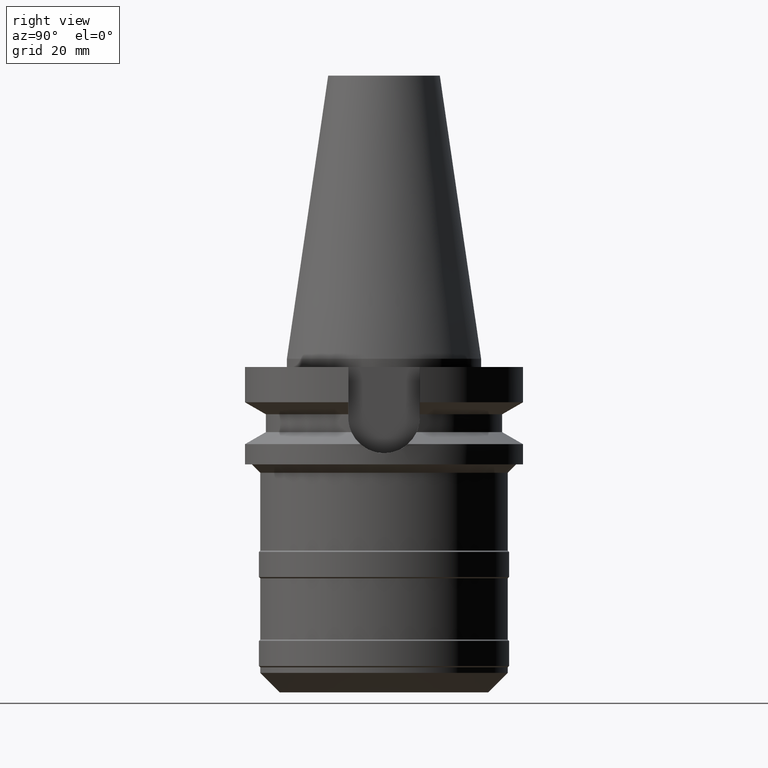
[diagram: clean part render]
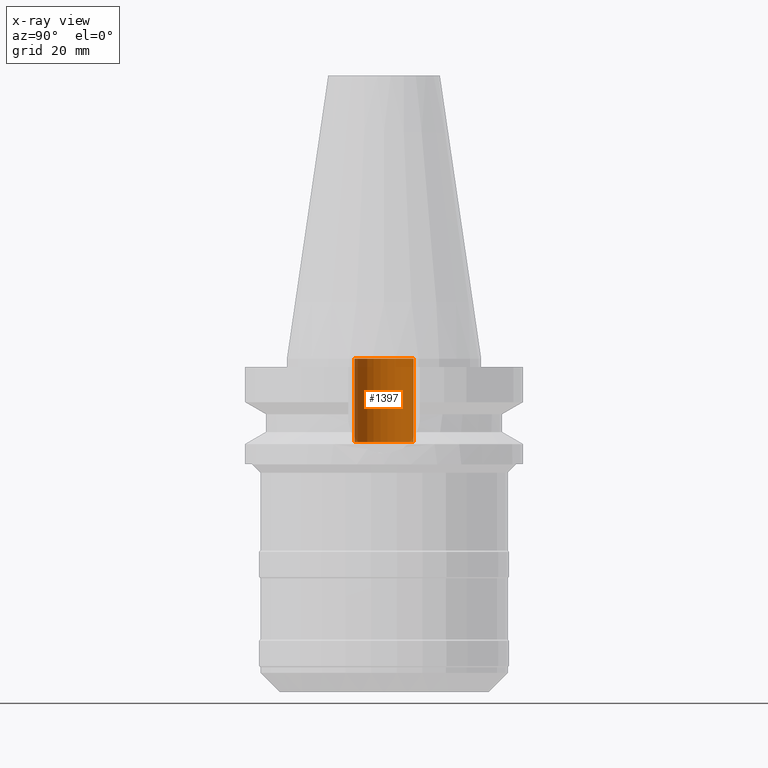
[diagram: x-ray — body ghosted, one internal face saturated and labeled with its STEP entity id]
A machine part, right view, then the same camera in x-ray: the body is ghosted and one INTERNAL B-rep face — a face not visible from any outside direction — is saturated and labeled: STEP entity #1397.
In plain terms, the highlighted cylindrical surface (edge-blend (fillet) strip) has radius 10.6 mm, axis along (0, 0, -1).
Its self-contained STEP definition (entity closure, byte-faithful):
#86=DIRECTION('',(0.E0,0.E0,1.E0));
#87=VECTOR('',#86,3.E1);
#88=CARTESIAN_POINT('',(0.E0,-1.06E1,-3.E1));
#89=LINE('',#88,#87);
#93=CARTESIAN_POINT('',(0.E0,2.607150570705E-14,-1.705302565824E-13));
#94=DIRECTION('',(0.E0,0.E0,-1.E0));
#95=DIRECTION('',(0.E0,-1.E0,0.E0));
#96=AXIS2_PLACEMENT_3D('',#93,#94,#95);
#101=DIRECTION('',(0.E0,0.E0,1.E0));
#102=VECTOR('',#101,3.E1);
#103=CARTESIAN_POINT('',(0.E0,1.06E1,-3.E1));
#104=LINE('',#103,#102);
#124=CARTESIAN_POINT('',(0.E0,2.607150570705E-14,-3.E1));
#125=DIRECTION('',(0.E0,0.E0,-1.E0));
#126=DIRECTION('',(0.E0,-1.E0,0.E0));
#127=AXIS2_PLACEMENT_3D('',#124,#125,#126);
#1152=CARTESIAN_POINT('',(0.E0,1.06E1,-1.847411112976E-13));
#1153=VERTEX_POINT('',#1152);
#1154=CARTESIAN_POINT('',(0.E0,-1.06E1,-1.847411112976E-13));
#1155=VERTEX_POINT('',#1154);
#1156=CARTESIAN_POINT('',(0.E0,1.06E1,-3.E1));
#1157=VERTEX_POINT('',#1156);
#1158=CARTESIAN_POINT('',(0.E0,-1.06E1,-3.E1));
#1159=VERTEX_POINT('',#1158);
#1383=CARTESIAN_POINT('',(0.E0,2.607150570705E-14,1.1289E2));
#1384=DIRECTION('',(0.E0,0.E0,-1.E0));
#1385=DIRECTION('',(0.E0,-1.E0,0.E0));
#1386=AXIS2_PLACEMENT_3D('',#1383,#1384,#1385);
#1387=CYLINDRICAL_SURFACE('',#1386,1.06E1);
#1389=ORIENTED_EDGE('',*,*,#1388,.F.);
#1391=ORIENTED_EDGE('',*,*,#1390,.F.);
#1393=ORIENTED_EDGE('',*,*,#1392,.T.);
#1394=ORIENTED_EDGE('',*,*,#1376,.T.);
#1395=EDGE_LOOP('',(#1389,#1391,#1393,#1394));
#1396=FACE_OUTER_BOUND('',#1395,.F.);
#97=CIRCLE('',#96,1.06E1);
#128=CIRCLE('',#127,1.06E1);
#1376=EDGE_CURVE('',#1155,#1153,#97,.T.);
#1388=EDGE_CURVE('',#1157,#1153,#104,.T.);
#1390=EDGE_CURVE('',#1159,#1157,#128,.T.);
#1392=EDGE_CURVE('',#1159,#1155,#89,.T.);
#1397=ADVANCED_FACE('',(#1396),#1387,.F.);